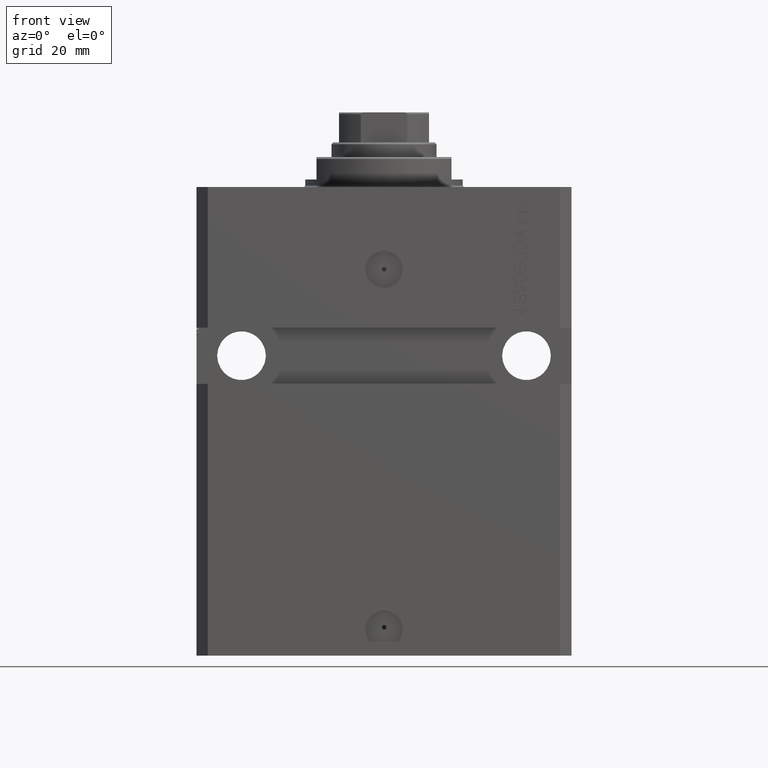
[diagram: clean part render]
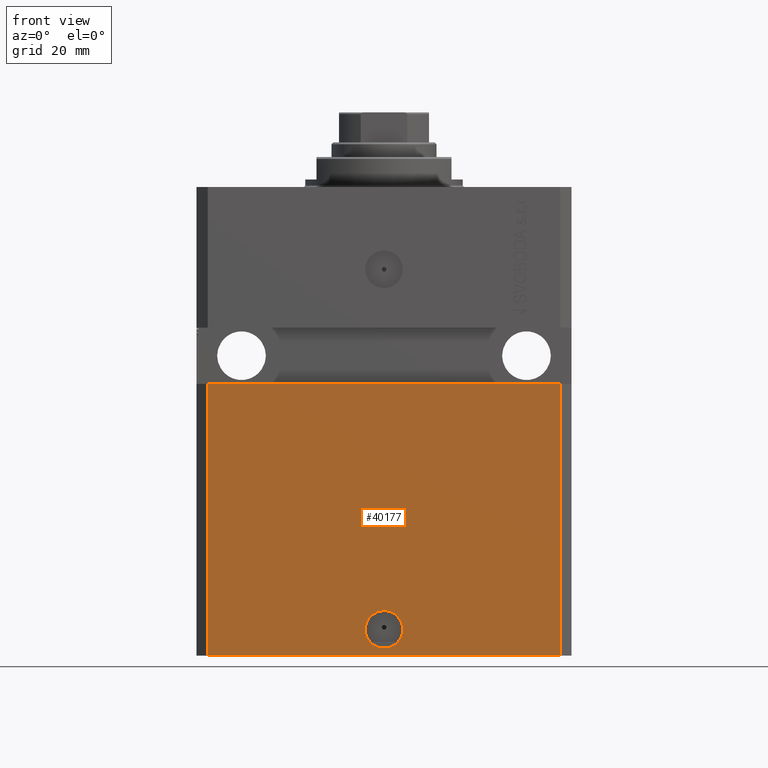
[diagram: same view with one face highlighted and labeled with its STEP entity id]
A machine part, front view. The second image highlights one B-rep face of the part: STEP entity #40177.
In plain terms, the highlighted planar face has unit normal (-0, -1, 0).
Its self-contained STEP definition (entity closure, byte-faithful):
#186 = EDGE_CURVE ( 'NONE', #36936, #41247, #42014, .T. ) ;
#626 = CARTESIAN_POINT ( 'NONE',  ( -5.000000000000011546, -37.50000000000000000, -118.0000000000000000 ) ) ;
#1175 = EDGE_CURVE ( 'NONE', #29395, #30756, #32884, .T. ) ;
#2069 = AXIS2_PLACEMENT_3D ( 'NONE', #41317, #30469, #8329 ) ;
#4061 = DIRECTION ( 'NONE',  ( 1.000000000000000000, -1.476360405086644309E-16, 0.000000000000000000 ) ) ;
#4096 = DIRECTION ( 'NONE',  ( 1.176083712526788232E-16, -1.000000000000000000, 0.000000000000000000 ) ) ;
#4513 = CIRCLE ( 'NONE', #38344, 5.000000000000006217 ) ;
#4780 = FACE_OUTER_BOUND ( 'NONE', #23797, .T. ) ;
#7357 = ORIENTED_EDGE ( 'NONE', *, *, #16435, .F. ) ;
#8327 = CARTESIAN_POINT ( 'NONE',  ( -47.00000000000000000, -37.49999999999999289, -125.0000000000000000 ) ) ;
#8329 = DIRECTION ( 'NONE',  ( 1.000000000000000000, 0.000000000000000000, 0.000000000000000000 ) ) ;
#8533 = LINE ( 'NONE', #26346, #35722 ) ;
#9022 = DIRECTION ( 'NONE',  ( 0.000000000000000000, 0.000000000000000000, 1.000000000000000000 ) ) ;
#9856 = CARTESIAN_POINT ( 'NONE',  ( -47.00000000000000000, -37.49999999999999289, -125.0000000000000000 ) ) ;
#9943 = EDGE_CURVE ( 'NONE', #39272, #31086, #14598, .T. ) ;
#10958 = CARTESIAN_POINT ( 'NONE',  ( -47.00000000000000000, -37.49999999999999289, -125.0000000000000000 ) ) ;
#12265 = FACE_BOUND ( 'NONE', #31546, .T. ) ;
#14598 = LINE ( 'NONE', #18198, #29188 ) ;
#16435 = EDGE_CURVE ( 'NONE', #41247, #31086, #8533, .T. ) ;
#17207 = DIRECTION ( 'NONE',  ( 1.000000000000000000, -1.476360405086644309E-16, 0.000000000000000000 ) ) ;
#18198 = CARTESIAN_POINT ( 'NONE',  ( 47.00000000000000000, -37.50000000000000711, -125.0000000000000000 ) ) ;
#18573 = CARTESIAN_POINT ( 'NONE',  ( -5.536351519074916863E-15, -37.50000000000000000, -118.0000000000000000 ) ) ;
#19702 = PLANE ( 'NONE',  #44122 ) ;
#20460 = EDGE_CURVE ( 'NONE', #36936, #39272, #39855, .T. ) ;
#20672 = CARTESIAN_POINT ( 'NONE',  ( -46.99999999999998579, -37.50000000000000711, -52.50000000000000000 ) ) ;
#20769 = ORIENTED_EDGE ( 'NONE', *, *, #1175, .F. ) ;
#23101 = ORIENTED_EDGE ( 'NONE', *, *, #29245, .F. ) ;
#23797 = EDGE_LOOP ( 'NONE', ( #7357, #27124, #47254, #37591 ) ) ;
#24042 = CARTESIAN_POINT ( 'NONE',  ( 5.000000000000000888, -37.50000000000000000, -118.0000000000000000 ) ) ;
#26346 = CARTESIAN_POINT ( 'NONE',  ( -50.00000000000001421, -37.50000000000000711, -52.50000000000000000 ) ) ;
#26931 = DIRECTION ( 'NONE',  ( -1.476360405086644309E-16, -1.000000000000000000, 0.000000000000000000 ) ) ;
#27124 = ORIENTED_EDGE ( 'NONE', *, *, #186, .F. ) ;
#29188 = VECTOR ( 'NONE', #29276, 1000.000000000000000 ) ;
#29245 = EDGE_CURVE ( 'NONE', #30756, #29395, #4513, .T. ) ;
#29276 = DIRECTION ( 'NONE',  ( 0.000000000000000000, 0.000000000000000000, 1.000000000000000000 ) ) ;
#29395 = VERTEX_POINT ( 'NONE', #24042 ) ;
#30469 = DIRECTION ( 'NONE',  ( 1.176083712526788232E-16, -1.000000000000000000, 0.000000000000000000 ) ) ;
#30756 = VERTEX_POINT ( 'NONE', #626 ) ;
#31086 = VERTEX_POINT ( 'NONE', #32372 ) ;
#31546 = EDGE_LOOP ( 'NONE', ( #20769, #23101 ) ) ;
#31757 = CARTESIAN_POINT ( 'NONE',  ( 47.00000000000000000, -37.50000000000000711, -125.0000000000000000 ) ) ;
#32372 = CARTESIAN_POINT ( 'NONE',  ( 47.00000000000000000, -37.49999999999999289, -52.49999999999998579 ) ) ;
#32884 = CIRCLE ( 'NONE', #2069, 5.000000000000006217 ) ;
#33265 = DIRECTION ( 'NONE',  ( 1.000000000000000000, 0.000000000000000000, 0.000000000000000000 ) ) ;
#34389 = VECTOR ( 'NONE', #9022, 1000.000000000000000 ) ;
#35722 = VECTOR ( 'NONE', #44897, 1000.000000000000000 ) ;
#36936 = VERTEX_POINT ( 'NONE', #9856 ) ;
#37591 = ORIENTED_EDGE ( 'NONE', *, *, #9943, .T. ) ;
#38344 = AXIS2_PLACEMENT_3D ( 'NONE', #18573, #4096, #33265 ) ;
#39272 = VERTEX_POINT ( 'NONE', #31757 ) ;
#39855 = LINE ( 'NONE', #10958, #40524 ) ;
#40177 = ADVANCED_FACE ( 'NONE', ( #12265, #4780 ), #19702, .T. ) ;
#40524 = VECTOR ( 'NONE', #17207, 1000.000000000000000 ) ;
#41247 = VERTEX_POINT ( 'NONE', #20672 ) ;
#41317 = CARTESIAN_POINT ( 'NONE',  ( -5.536351519074916863E-15, -37.50000000000000000, -118.0000000000000000 ) ) ;
#42014 = LINE ( 'NONE', #8327, #34389 ) ;
#44122 = AXIS2_PLACEMENT_3D ( 'NONE', #45248, #26931, #4061 ) ;
#44897 = DIRECTION ( 'NONE',  ( 1.000000000000000000, 1.387778780781445676E-16, 1.387778780781445676E-16 ) ) ;
#45248 = CARTESIAN_POINT ( 'NONE',  ( -47.00000000000000000, -37.49999999999999289, -125.0000000000000000 ) ) ;
#47254 = ORIENTED_EDGE ( 'NONE', *, *, #20460, .T. ) ;